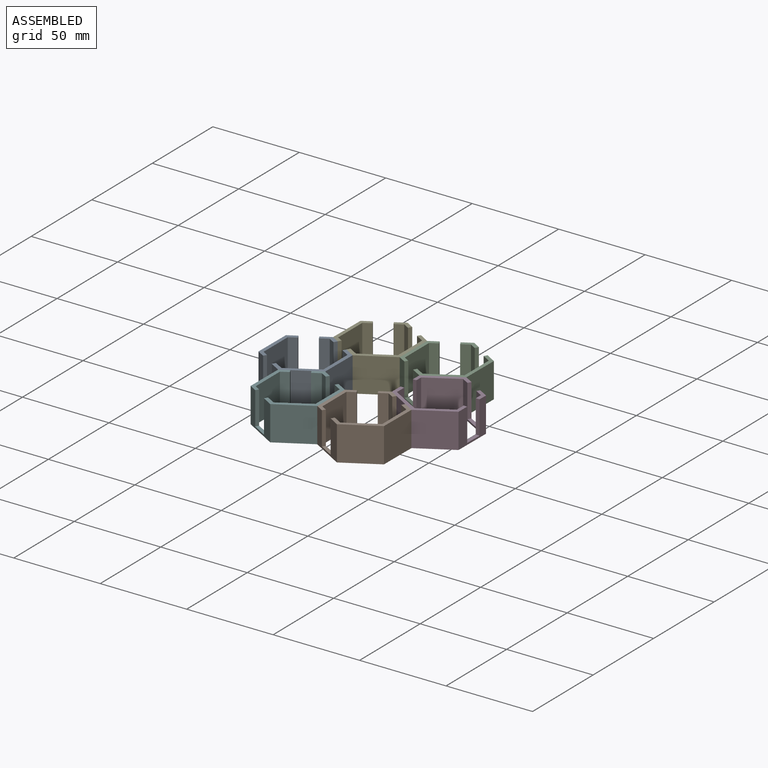
[diagram: assembled view]
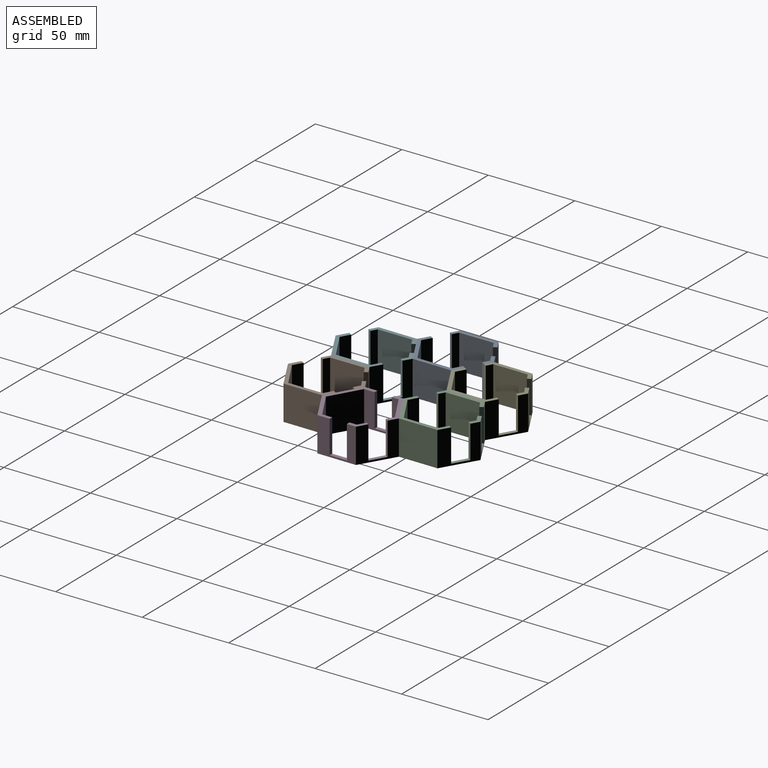
[diagram: assembled view, second angle]
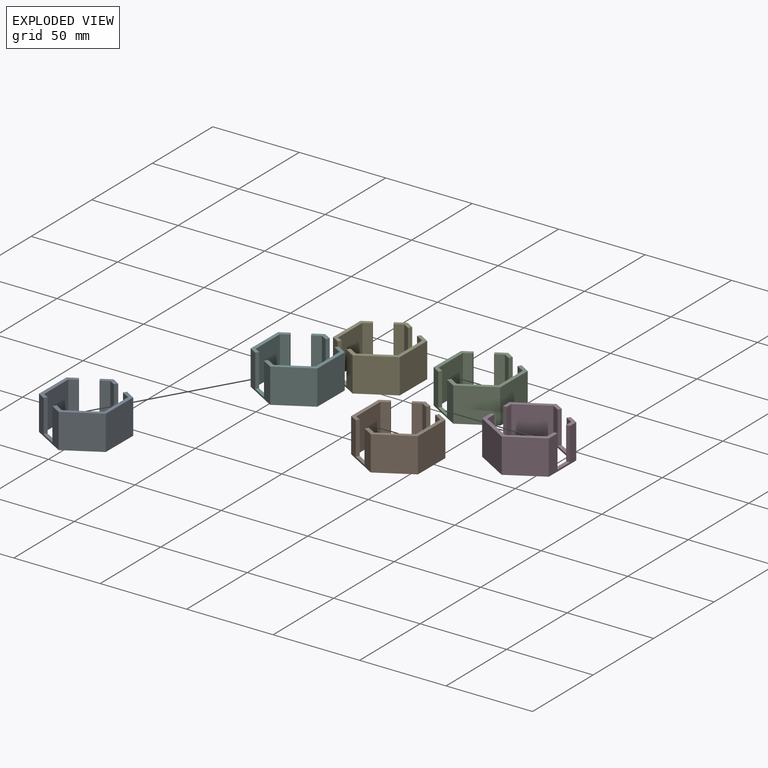
[diagram: exploded view]
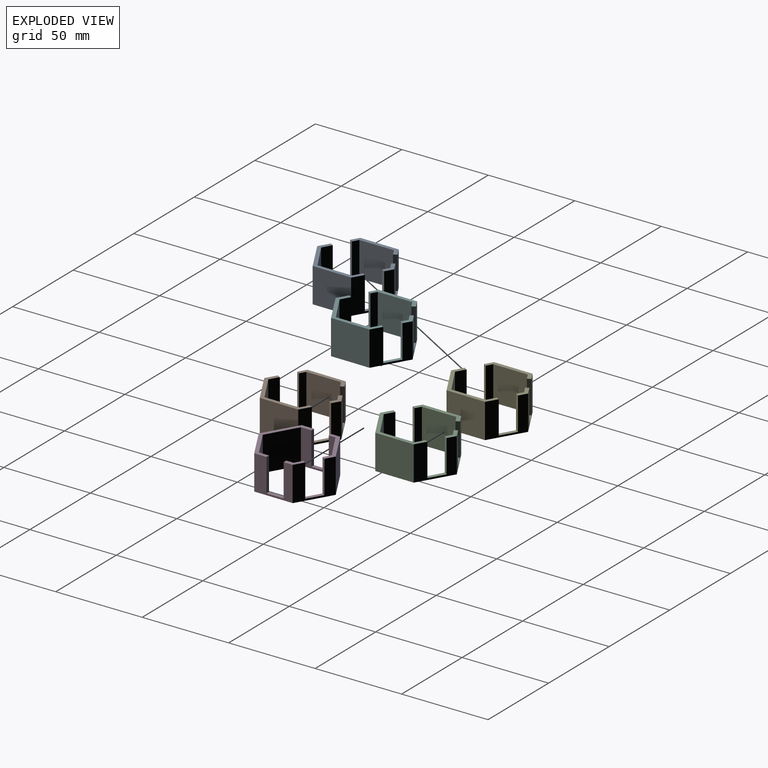
[diagram: exploded view, second angle]
ASSEMBLY  parts=6 mates=2
PART A: 25 faces, bbox 39x44.8x20 mm
  f0: plane 27.98x6.4mm, normal (0,0,1), area 65.8mm2, adj f1,f2,f4,f7,f11,f13,f20,f24
  f1: plane 20x19.5mm, normal (-0.49,0.87,0), area 258.1mm2, adj f0,f3,f13,f14,f15,f22,f23,f24
  f2: plane 20x17.29mm, normal (0.5,-0.87,0), area 209.3mm2, adj f0,f5,f11,f14,f15,f22,f23,f24
  f3: plane 20x19.3mm, normal (0.51,0.86,0), area 258.1mm2, adj f1,f6,f9,f14,f15,f16,f17,f18
  f4: plane 20x17.29mm, normal (0.5,0.87,0), area 209.3mm2, adj f0,f6,f10,f11,f15,f19,f20,f21
  f5: plane 20x17.29mm, normal (-0.5,-0.87,0), area 209.3mm2, adj f2,f6,f12,f14,f15,f16,f17,f18
  f6: plane 37.06x25.86mm, normal (0,0,1), area 117.2mm2, adj f3,f4,f5,f7,f8,f9,f10,f12
  f7: plane 20x19.3mm, normal (-0.51,-0.86,0), area 258.1mm2, adj f0,f6,f8,f13,f15,f19,f20,f21
  f8: plane 20x19.5mm, normal (0.49,-0.87,0), area 448.1mm2, adj f6,f7,f9,f15
  f9: plane 22.4x20mm, normal (1,-0.01,0), area 448.1mm2, adj f3,f6,f8,f15
  f10: plane 20x17.29mm, normal (-0.5,0.87,0), area 399.3mm2, adj f4,f6,f12,f15
  f11: plane 20x19.96mm, normal (1,0,0), area 399.3mm2, adj f0,f2,f4,f15
  f12: plane 20x19.96mm, normal (-1,0,0), area 399.3mm2, adj f5,f6,f10,f15
  f13: plane 22.4x20mm, normal (-1,0.01,0), area 448.1mm2, adj f0,f1,f7,f15
  f14: plane 10.2x5.01mm, normal (0,0,1), area 22.3mm2, adj f1,f2,f3,f5,f17,f22
  f15: plane 44.81x39.01mm, normal (0,0,-1), area 268.7mm2, adj f1,f2,f3,f4,f5,f7,f8,f9
  f16: plane 19x1.79mm, normal (-0.86,0.51,0), area 39.4mm2, adj f3,f5,f6,f18
  f17: plane 19x1.87mm, normal (0.86,-0.51,0), area 41.2mm2, adj f3,f5,f14,f18
  f18: plane 9.72x6.87mm, normal (0,0,1), area 21.2mm2, adj f3,f5,f16,f17
  f19: plane 9.71x6.85mm, normal (0,0,1), area 21mm2, adj f4,f7,f20,f21
  f20: plane 19x1.77mm, normal (0.86,-0.51,0), area 39.1mm2, adj f0,f4,f7,f19
  f21: plane 19x1.85mm, normal (-0.86,0.51,0), area 40.9mm2, adj f4,f6,f7,f19
  f22: plane 19x1.8mm, normal (-0.87,-0.49,0), area 39.3mm2, adj f1,f2,f14,f23
  f23: plane 9.72x6.81mm, normal (0,0,1), area 21.2mm2, adj f1,f2,f22,f24
  f24: plane 19x1.88mm, normal (0.87,0.49,0), area 41.1mm2, adj f0,f1,f2,f23
PART B: same geometry as A
PART C: same geometry as A
PART D: same geometry as A
PART E: same geometry as A
PART F: same geometry as A
PLACE A t=(-40.69,-22.29,-1.33)mm
PLACE B t=(17.21,-56.42,-1.33)mm
PLACE C t=(17.82,10.79,-1.33)mm
PLACE D rot(axis=(0,0,-1),60deg) t=(36.92,-22.99,-1.33)mm
PLACE E t=(-20.99,11.15,-1.33)mm
PLACE F t=(-21.59,-56.07,-1.33)mm
MATE planar A.f3 <-> E.f7  axis (0.51,0.86,0) through (-30.24,-5.92,8.3)mm
MATE planar D.f13 <-> C.f8  axis (-0.49,0.87,0) through (27.37,-6.1,8.67)mm
